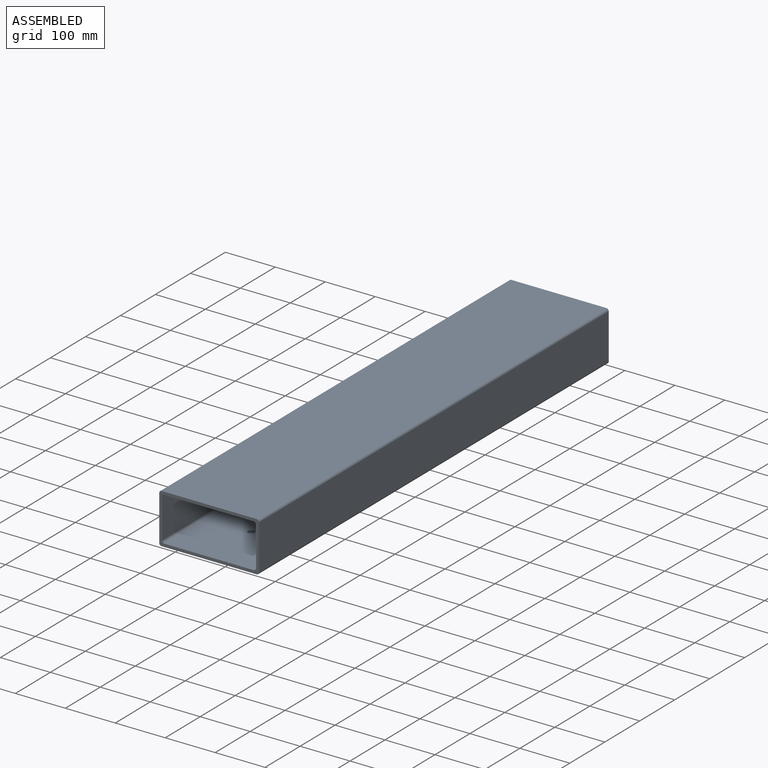
[diagram: assembled view]
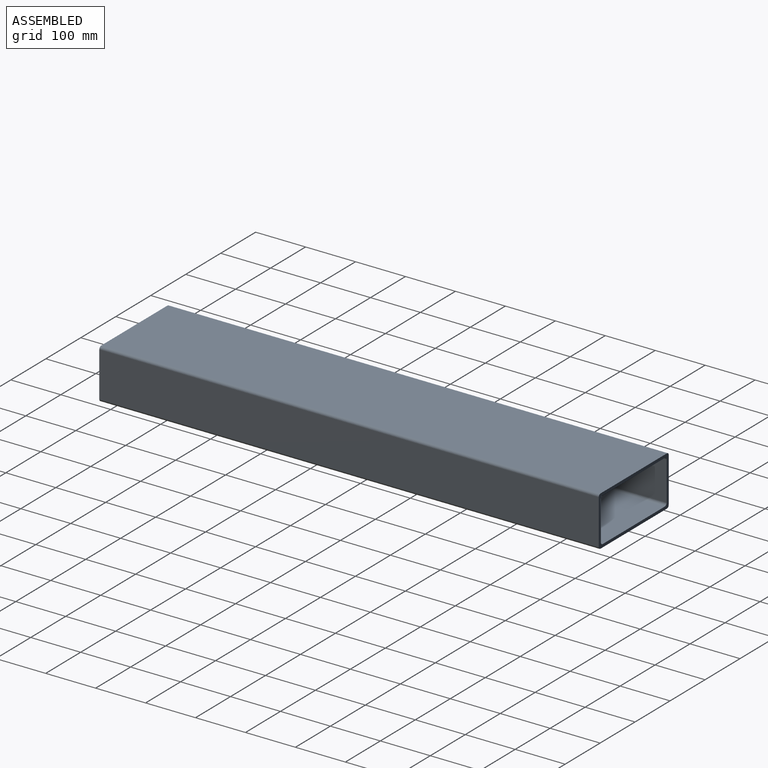
[diagram: assembled view, second angle]
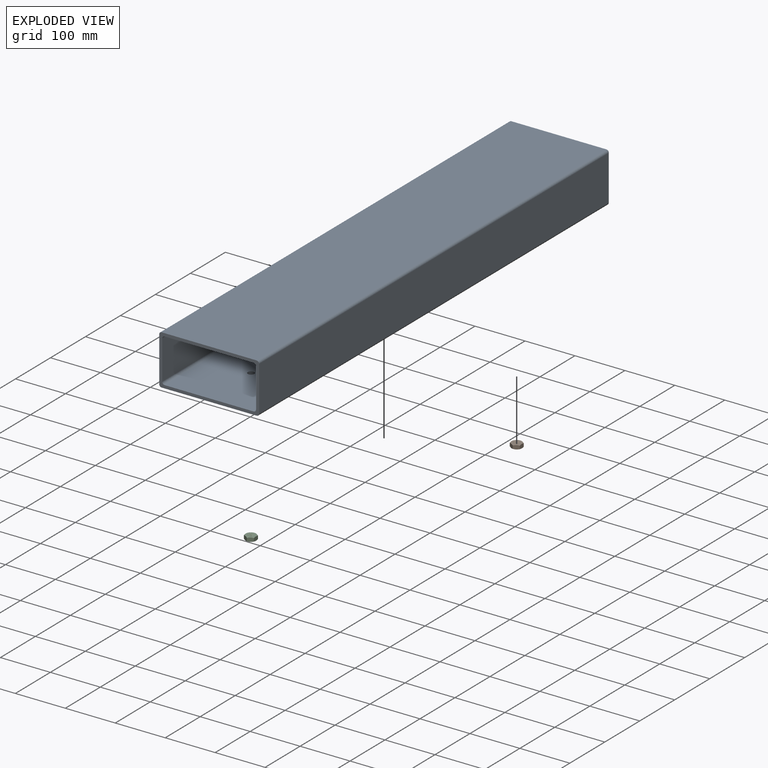
[diagram: exploded view]
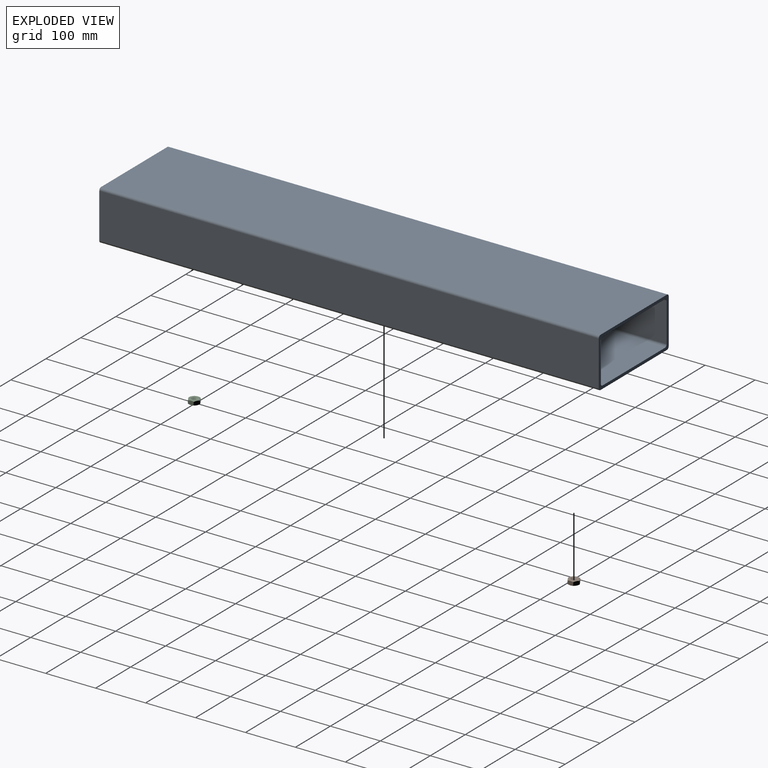
[diagram: exploded view, second angle]
ASSEMBLY  parts=3 mates=2
PART A: 20 faces, bbox 100x1000x200 mm
  f0: plane 1000x178mm, normal (-1,0,0), area 177734.5mm2, adj f8,f9,f11,f12,f18,f19
  f1: plane 1000x190mm, normal (1,0,0), area 189734.5mm2, adj f8,f9,f16,f17,f18,f19
  f2: plane 1000x90mm, normal (0,0,1), area 90000mm2, adj f8,f9,f14,f17
  f3: plane 1000x190mm, normal (-1,0,0), area 190000mm2, adj f8,f9,f14,f15
  f4: plane 1000x90mm, normal (0,0,-1), area 90000mm2, adj f8,f9,f15,f16
  f5: plane 1000x178mm, normal (1,0,0), area 178000mm2, adj f8,f9,f10,f13
  f6: plane 1000x78mm, normal (0,0,-1), area 78000mm2, adj f8,f9,f10,f11
  f7: plane 1000x78mm, normal (0,0,1), area 78000mm2, adj f8,f9,f12,f13
  f8: plane 200x100mm, normal (0,-1,0), area 3456mm2, adj f0,f1,f2,f3,f4,f5,f6,f7
  f9: plane 200x100mm, normal (0,1,0), area 3456mm2, adj f0,f1,f2,f3,f4,f5,f6,f7
  f10: cylinder r=5mm len=1000mm, axis (0,1,0), area 7854mm2, adj f5,f6,f8,f9
  f11: cylinder r=5mm len=1000mm, axis (0,-1,0), area 7854mm2, adj f0,f6,f8,f9
  f12: cylinder r=5mm len=1000mm, axis (0,1,0), area 7854mm2, adj f0,f7,f8,f9
  f13: cylinder r=5mm len=1000mm, axis (0,-1,0), area 7854mm2, adj f5,f7,f8,f9
  f14: cylinder r=5mm len=1000mm, axis (0,-1,0), area 7854mm2, adj f2,f3,f8,f9
  f15: cylinder r=5mm len=1000mm, axis (0,1,0), area 7854mm2, adj f3,f4,f8,f9
  f16: cylinder r=5mm len=1000mm, axis (0,-1,0), area 7854mm2, adj f1,f4,f8,f9
  f17: cylinder r=5mm len=1000mm, axis (0,1,0), area 7854mm2, adj f1,f2,f8,f9
  f18: cylinder r=6.5mm len=13mm, axis (1,0,0), area 245mm2, adj f0,f1
  f19: cylinder r=6.5mm len=13mm, axis (1,0,0), area 245mm2, adj f0,f1
PART B: 23 faces, bbox 24.3x24.3x11.4 mm
  f0: plane 21.14x21.14mm, normal (0,0,1), area 208.1mm2, adj f2,f5,f6,f8,f10,f12,f14,f21
  f1: plane 21.18x21.18mm, normal (0,0,-1), area 208.1mm2, adj f2,f3,f4,f7,f9,f11,f13,f21
  f2: cylinder r=5.1mm len=10.2mm, axis (0,0,-1), area 7.1mm2, adj f0,f1,f21,f22
  f3: cone r=15.21mm half-angle=60deg, axis (0,0,1), area 9.8mm2, adj f1,f15,f20
  f4: cone r=15.21mm half-angle=60deg, axis (0,0,1), area 9.8mm2, adj f1,f15,f16
  f5: cone r=15.21mm half-angle=60deg, axis (0,0,-1), area 9.8mm2, adj f0,f15,f20
  f6: cone r=15.21mm half-angle=60deg, axis (0,0,-1), area 9.8mm2, adj f0,f15,f16
  f7: cone r=15.21mm half-angle=60deg, axis (0,0,1), area 9.8mm2, adj f1,f16,f17
  f8: cone r=15.21mm half-angle=60deg, axis (0,0,-1), area 9.8mm2, adj f0,f16,f17
  f9: cone r=15.21mm half-angle=60deg, axis (0,0,1), area 9.8mm2, adj f1,f17,f18
  f10: cone r=15.21mm half-angle=60deg, axis (0,0,-1), area 9.8mm2, adj f0,f17,f18
  f11: cone r=15.21mm half-angle=60deg, axis (0,0,1), area 9.8mm2, adj f1,f18,f19
  f12: cone r=15.21mm half-angle=60deg, axis (0,0,-1), area 9.8mm2, adj f0,f18,f19
  f13: cone r=15.21mm half-angle=60deg, axis (0,0,1), area 9.8mm2, adj f1,f19,f20
  f14: cone r=15.21mm half-angle=60deg, axis (0,0,-1), area 9.8mm2, adj f0,f19,f20
  f15: plane 10.95x8.95mm, normal (0.5,-0.87,0), area 85.3mm2, adj f3,f4,f5,f6,f16,f20
  f16: plane 10.95x8.95mm, normal (-0.5,-0.87,0), area 85.3mm2, adj f4,f6,f7,f8,f15,f17
  f17: plane 12.5x8.95mm, normal (-1,0,0), area 85.3mm2, adj f7,f8,f9,f10,f16,f18
  f18: plane 10.95x8.95mm, normal (-0.5,0.87,0), area 85.3mm2, adj f9,f10,f11,f12,f17,f19
  f19: plane 10.95x8.95mm, normal (0.5,0.87,0), area 85.3mm2, adj f11,f12,f13,f14,f18,f20
  f20: plane 12.5x8.95mm, normal (1,0,0), area 85.3mm2, adj f3,f5,f13,f14,f15,f19
  f21: bspline ~15.08x13.06mm, area 284.3mm2, adj f0,f1,f2,f22
  f22: bspline ~15.08x13.06mm, area 284.3mm2, adj f0,f1,f2,f21
PART C: same geometry as B
PLACE A rot(axis=(0.71,0,-0.71),180deg) t=(-131.54,-351.8,-426.48)mm
PLACE B t=(-156.12,528.18,-208.7)mm
PLACE C t=(-156.12,-231.82,-208.7)mm
MATE fastened A.f18 <-> C.f0  axis (0,0,-1) through (-155.82,-231.8,-204.7)mm
MATE fastened B.f0 <-> A.f19  axis (0,0,1) through (-155.82,528.2,-204.7)mm
